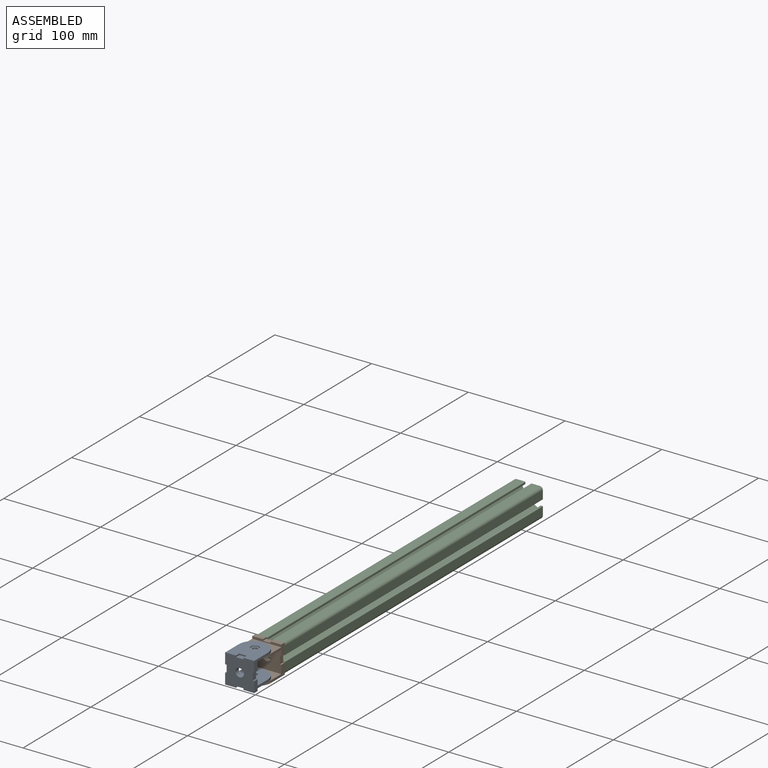
[diagram: assembled view]
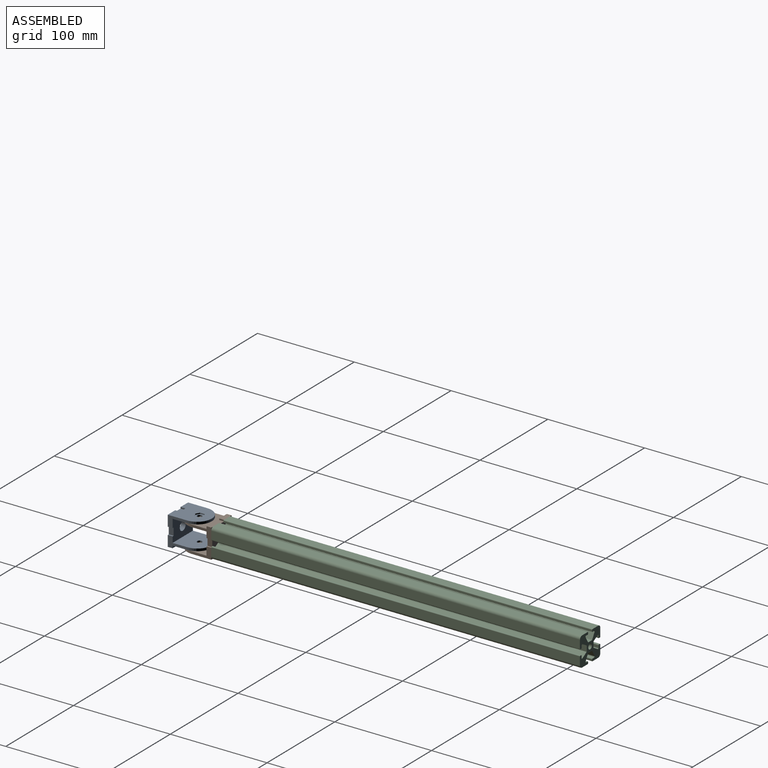
[diagram: assembled view, second angle]
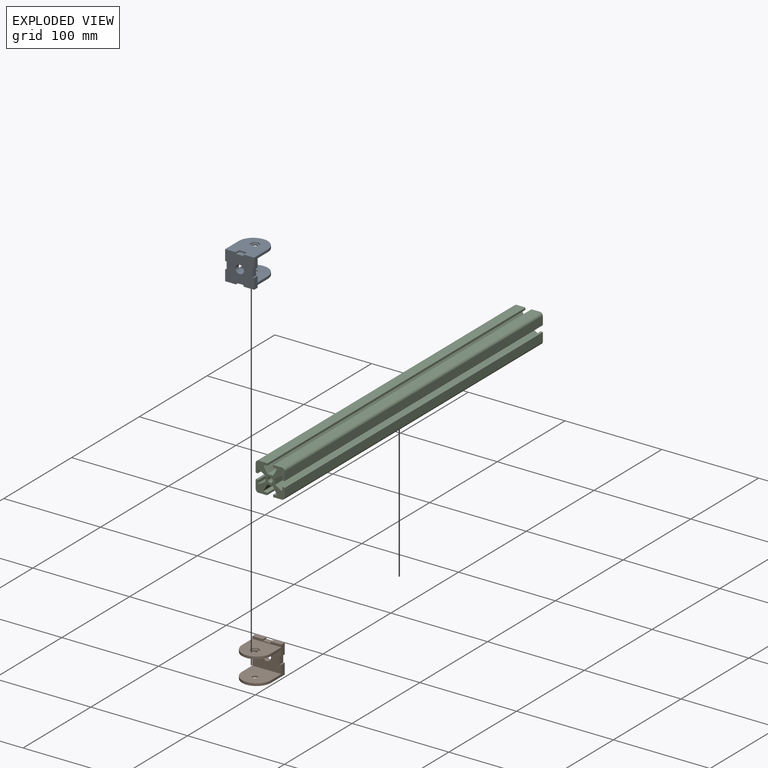
[diagram: exploded view]
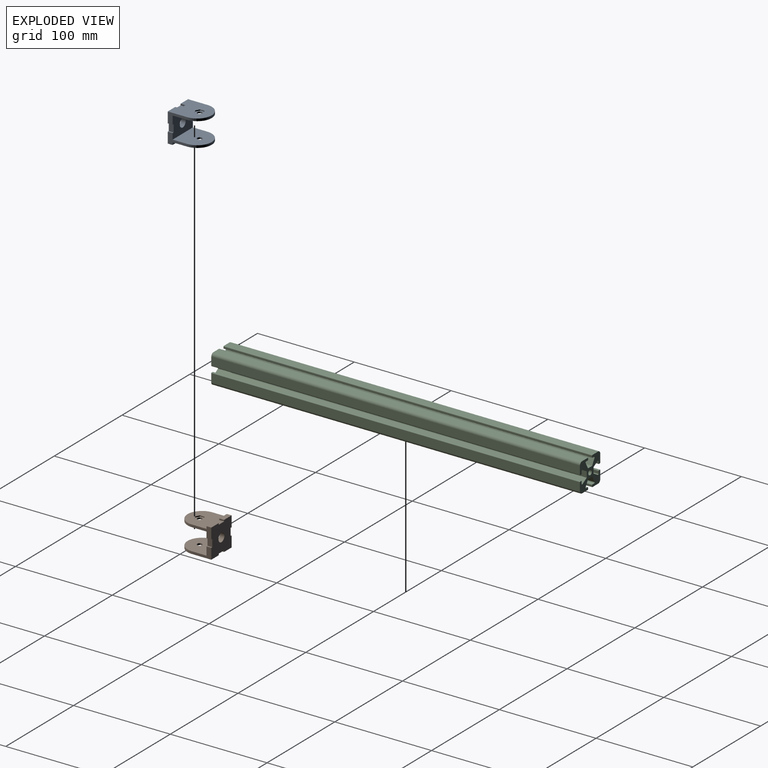
[diagram: exploded view, second angle]
ASSEMBLY  parts=3 mates=5
PART A: 45 faces, bbox 30x30x35 mm
  f0: cylinder r=2.5mm len=5mm, axis (0,-1,0), area 23.6mm2, adj f11,f44
  f1: cylinder r=2.5mm len=5mm, axis (0,-1,0), area 23.6mm2, adj f12,f37
  f2: plane 11.1x5mm, normal (0,1,0), area 55.5mm2, adj f4,f5,f8,f23
  f3: plane 20x11.1mm, normal (1,0,0), area 93mm2, adj f5,f6,f8,f9,f10,f11,f16,f26
  f4: plane 20x11.1mm, normal (-1,0,0), area 93mm2, adj f2,f5,f6,f8,f10,f11,f16,f19
  f5: plane 30x2.5mm, normal (0,0,1), area 63.3mm2, adj f2,f3,f4,f9,f10,f21,f22,f23
  f6: plane 30x22.5mm, normal (0,0,1), area 592.2mm2, adj f3,f4,f11,f12,f13,f14,f17,f18
  f7: plane 35x30mm, normal (0,-1,0), area 859mm2, adj f8,f13,f14,f15,f28,f29,f30,f31
  f8: plane 30x30mm, normal (0,0,-1), area 793.8mm2, adj f2,f3,f4,f7,f9,f13,f14,f17
  f9: plane 11.1x5mm, normal (0,1,0), area 55.5mm2, adj f3,f5,f8,f21
  f10: plane 30x30mm, normal (0,1,0), area 748mm2, adj f3,f4,f5,f16,f38,f39,f40,f41
  f11: plane 30x30mm, normal (0,-1,0), area 783.8mm2, adj f0,f3,f4,f6,f16
  f12: plane 30x30mm, normal (0,1,0), area 783.8mm2, adj f1,f6,f13,f14,f15
  f13: plane 20x11.1mm, normal (1,0,0), area 93mm2, adj f6,f7,f8,f12,f15,f24
  f14: plane 20x11.1mm, normal (-1,0,0), area 93mm2, adj f6,f7,f8,f12,f15,f18
  f15: cylinder r=15mm len=30mm, axis (0,1,0), area 117.8mm2, adj f7,f12,f13,f14
  f16: cylinder r=15mm len=30mm, axis (0,1,0), area 117.8mm2, adj f3,f4,f10,f11
  f17: cylinder r=4.35mm len=8.7mm, axis (0,0,-1), area 136.7mm2, adj f6,f8
  f18: plane 5x1.5mm, normal (0,1,0), area 7.5mm2, adj f6,f8,f14,f20
  f19: plane 5x1.5mm, normal (0,-1,0), area 7.5mm2, adj f4,f6,f8,f20
  f20: plane 7.8x5mm, normal (-1,0,0), area 39mm2, adj f6,f8,f18,f19
  f21: plane 5x1.5mm, normal (-1,0,0), area 7.5mm2, adj f5,f8,f9,f22
  f22: plane 7.8x5mm, normal (0,1,0), area 39mm2, adj f5,f8,f21,f23
  f23: plane 5x1.5mm, normal (1,0,0), area 7.5mm2, adj f2,f5,f8,f22
  f24: plane 5x1.5mm, normal (0,1,0), area 7.5mm2, adj f6,f8,f13,f25
  f25: plane 7.8x5mm, normal (1,0,0), area 39mm2, adj f6,f8,f24,f26
  f26: plane 5x1.5mm, normal (0,-1,0), area 7.5mm2, adj f3,f6,f8,f25
  f27: plane 7.8x5mm, normal (0,-1,0), area 39mm2, adj f8,f28,f29,f30
  f28: plane 5x1.5mm, normal (-1,0,0), area 7.5mm2, adj f7,f8,f27,f30
  f29: plane 5x1.5mm, normal (1,0,0), area 7.5mm2, adj f7,f8,f27,f30
  f30: plane 7.8x1.5mm, normal (0,0,-1), area 11.7mm2, adj f7,f27,f28,f29
  f31: plane 4x2.31mm, normal (-0.5,0,-0.87), area 4.6mm2, adj f7,f32,f36,f37
  f32: plane 4x2.31mm, normal (0.5,0,-0.87), area 4.6mm2, adj f7,f31,f33,f37
  f33: plane 4.62x1mm, normal (1,0,0), area 4.6mm2, adj f7,f32,f34,f37
  f34: plane 4x2.31mm, normal (0.5,0,0.87), area 4.6mm2, adj f7,f33,f35,f37
  f35: plane 4x2.31mm, normal (-0.5,0,0.87), area 4.6mm2, adj f7,f34,f36,f37
  f36: plane 4.62x1mm, normal (-1,0,0), area 4.6mm2, adj f7,f31,f35,f37
  f37: plane 9.24x8mm, normal (0,-1,0), area 35.8mm2, adj f1,f31,f32,f33,f34,f35,f36
  f38: plane 4x2.31mm, normal (0.5,0,-0.87), area 4.6mm2, adj f10,f39,f43,f44
  f39: plane 4x2.31mm, normal (-0.5,0,-0.87), area 4.6mm2, adj f10,f38,f40,f44
  f40: plane 4.62x1mm, normal (-1,0,0), area 4.6mm2, adj f10,f39,f41,f44
  f41: plane 4x2.31mm, normal (-0.5,0,0.87), area 4.6mm2, adj f10,f40,f42,f44
  f42: plane 4x2.31mm, normal (0.5,0,0.87), area 4.6mm2, adj f10,f41,f43,f44
  f43: plane 4.62x1mm, normal (1,0,0), area 4.6mm2, adj f10,f38,f42,f44
  f44: plane 9.24x8mm, normal (0,1,0), area 35.8mm2, adj f0,f38,f39,f40,f41,f42,f43
PART B: same geometry as A
PART C: 67 faces, bbox 30x381x30 mm
  f0: plane 381x1.5mm, normal (0,0,-1), area 571.5mm2, adj f1,f64,f65,f66
  f1: cylinder r=0.5mm len=381mm, axis (0,1,0), area 299.2mm2, adj f0,f2,f65,f66
  f2: plane 381x2.44mm, normal (1,0,0), area 931.3mm2, adj f1,f3,f65,f66
  f3: cylinder r=0.8mm len=381mm, axis (0,1,0), area 638.4mm2, adj f2,f4,f65,f66
  f4: plane 381x6.3mm, normal (-0.5,0,-0.87), area 2771.6mm2, adj f3,f5,f65,f66
  f5: plane 381x6mm, normal (-1,0,0), area 2286mm2, adj f4,f6,f65,f66
  f6: plane 381x6.3mm, normal (-0.5,0,0.87), area 2771.6mm2, adj f5,f7,f65,f66
  f7: cylinder r=0.8mm len=381mm, axis (0,1,0), area 638.4mm2, adj f6,f8,f65,f66
  f8: plane 381x2.44mm, normal (1,0,0), area 931.3mm2, adj f7,f9,f65,f66
  f9: cylinder r=0.5mm len=381mm, axis (0,1,0), area 299.2mm2, adj f8,f10,f65,f66
  f10: plane 381x1.5mm, normal (0,0,1), area 571.5mm2, adj f9,f11,f65,f66
  f11: cylinder r=0.5mm len=381mm, axis (0,1,0), area 299.2mm2, adj f10,f12,f65,f66
  f12: plane 381x8.5mm, normal (-1,0,0), area 3238.5mm2, adj f11,f13,f65,f66
  f13: cylinder r=3mm len=381mm, axis (0,1,0), area 1795.4mm2, adj f12,f14,f65,f66
  f14: plane 381x8.5mm, normal (0,0,-1), area 3238.5mm2, adj f13,f15,f65,f66
  f15: cylinder r=0.5mm len=381mm, axis (0,1,0), area 299.2mm2, adj f14,f16,f65,f66
  f16: plane 381x1.5mm, normal (1,0,0), area 571.5mm2, adj f15,f17,f65,f66
  f17: cylinder r=0.5mm len=381mm, axis (0,1,0), area 299.2mm2, adj f16,f18,f65,f66
  f18: plane 381x2.44mm, normal (0,0,1), area 931.3mm2, adj f17,f19,f65,f66
  f19: cylinder r=0.8mm len=381mm, axis (0,1,0), area 638.4mm2, adj f18,f20,f65,f66
  f20: plane 381x6.3mm, normal (0.87,0,-0.5), area 2771.6mm2, adj f19,f21,f65,f66
  f21: plane 381x6mm, normal (0,0,-1), area 2286mm2, adj f20,f22,f65,f66
  f22: plane 381x6.3mm, normal (-0.87,0,-0.5), area 2771.6mm2, adj f21,f23,f65,f66
  f23: cylinder r=0.8mm len=381mm, axis (0,1,0), area 638.4mm2, adj f22,f24,f65,f66
  f24: plane 381x2.44mm, normal (0,0,1), area 931.3mm2, adj f23,f25,f65,f66
  f25: cylinder r=0.5mm len=381mm, axis (0,1,0), area 299.2mm2, adj f24,f26,f65,f66
  f26: plane 381x1.5mm, normal (-1,0,0), area 571.5mm2, adj f25,f27,f65,f66
  f27: cylinder r=0.5mm len=381mm, axis (0,1,0), area 299.2mm2, adj f26,f28,f65,f66
  f28: plane 381x8.5mm, normal (0,0,-1), area 3238.5mm2, adj f27,f29,f65,f66
  f29: cylinder r=3mm len=381mm, axis (0,1,0), area 1795.4mm2, adj f28,f30,f65,f66
  f30: plane 381x8.5mm, normal (1,0,0), area 3238.5mm2, adj f29,f31,f65,f66
  f31: cylinder r=0.5mm len=381mm, axis (0,1,0), area 299.2mm2, adj f30,f32,f65,f66
  f32: plane 381x1.5mm, normal (0,0,1), area 571.5mm2, adj f31,f33,f65,f66
  f33: cylinder r=0.5mm len=381mm, axis (0,1,0), area 299.2mm2, adj f32,f34,f65,f66
  f34: plane 381x2.44mm, normal (-1,0,0), area 931.3mm2, adj f33,f35,f65,f66
  f35: cylinder r=0.8mm len=381mm, axis (0,1,0), area 638.4mm2, adj f34,f36,f65,f66
  f36: plane 381x6.3mm, normal (0.5,0,0.87), area 2771.6mm2, adj f35,f37,f65,f66
  f37: plane 381x6mm, normal (1,0,0), area 2286mm2, adj f36,f38,f65,f66
  f38: plane 381x6.3mm, normal (0.5,0,-0.87), area 2771.6mm2, adj f37,f39,f65,f66
  f39: cylinder r=0.8mm len=381mm, axis (0,1,0), area 638.4mm2, adj f38,f40,f65,f66
  f40: plane 381x2.44mm, normal (-1,0,0), area 931.3mm2, adj f39,f41,f65,f66
  f41: cylinder r=0.5mm len=381mm, axis (0,1,0), area 299.2mm2, adj f40,f42,f65,f66
  f42: plane 381x1.5mm, normal (0,0,-1), area 571.5mm2, adj f41,f43,f65,f66
  f43: cylinder r=0.5mm len=381mm, axis (0,1,0), area 299.2mm2, adj f42,f44,f65,f66
  f44: plane 381x8.5mm, normal (1,0,0), area 3238.5mm2, adj f43,f45,f65,f66
  f45: cylinder r=3mm len=381mm, axis (0,1,0), area 1795.4mm2, adj f44,f46,f65,f66
  f46: plane 381x8.5mm, normal (0,0,1), area 3238.5mm2, adj f45,f47,f65,f66
  f47: cylinder r=0.5mm len=381mm, axis (0,1,0), area 299.2mm2, adj f46,f48,f65,f66
  f48: plane 381x1.5mm, normal (-1,0,0), area 571.5mm2, adj f47,f49,f65,f66
  f49: cylinder r=0.5mm len=381mm, axis (0,1,0), area 299.2mm2, adj f48,f50,f65,f66
  f50: plane 381x2.44mm, normal (0,0,-1), area 931.3mm2, adj f49,f51,f65,f66
  f51: cylinder r=0.8mm len=381mm, axis (0,1,0), area 638.4mm2, adj f50,f52,f65,f66
  f52: plane 381x6.3mm, normal (-0.87,0,0.5), area 2771.6mm2, adj f51,f53,f65,f66
  f53: plane 381x6mm, normal (0,0,1), area 2286mm2, adj f52,f54,f65,f66
  f54: plane 381x6.3mm, normal (0.87,0,0.5), area 2771.6mm2, adj f53,f55,f65,f66
  f55: cylinder r=0.8mm len=381mm, axis (0,1,0), area 638.4mm2, adj f54,f56,f65,f66
  f56: plane 381x2.44mm, normal (0,0,-1), area 931.3mm2, adj f55,f57,f65,f66
  f57: cylinder r=0.5mm len=381mm, axis (0,1,0), area 299.2mm2, adj f56,f58,f65,f66
  f58: plane 381x1.5mm, normal (1,0,0), area 571.5mm2, adj f57,f59,f65,f66
  f59: cylinder r=0.5mm len=381mm, axis (0,1,0), area 299.2mm2, adj f58,f60,f65,f66
  f60: plane 381x8.5mm, normal (0,0,1), area 3238.5mm2, adj f59,f61,f65,f66
  f61: cylinder r=3mm len=381mm, axis (0,1,0), area 1795.4mm2, adj f60,f62,f65,f66
  f62: plane 381x8.5mm, normal (-1,0,0), area 3238.5mm2, adj f61,f64,f65,f66
  f63: cylinder r=2.6mm len=381mm, axis (0,1,0), area 6224.1mm2, adj f65,f66
  f64: cylinder r=0.5mm len=381mm, axis (0,1,0), area 299.2mm2, adj f0,f62,f65,f66
  f65: plane 30x30mm, normal (0,-1,0), area 503.8mm2, adj f0,f1,f2,f3,f4,f5,f6,f7
  f66: plane 30x30mm, normal (0,1,0), area 503.8mm2, adj f0,f1,f2,f3,f4,f5,f6,f7
PLACE A rot(axis=(-1,0,0),90deg) t=(-124.81,-106.51,-56)mm
PLACE B rot(axis=(1,0,0),90deg) t=(-124.81,-66.51,-56)mm
PLACE C t=(-109.81,316.99,-56)mm
MATE planar C.f60 <-> B.f2  axis (0,0,1) through (-117.56,-64.01,-41)mm
MATE planar C.f65 <-> B.f8  axis (0,-1,0) through (-121.11,-64.01,-49.36)mm
MATE planar A.f12 <-> B.f10  axis (0,0,-1) through (-109.81,-90.51,-43.5)mm
MATE slider A.f0 <-> B.f0  axis (0,0,1) through (-109.81,-86.51,-43.5)mm
MATE planar B.f4 <-> C.f62  axis (-1,0,0) through (-124.81,-69.01,-49.05)mm
